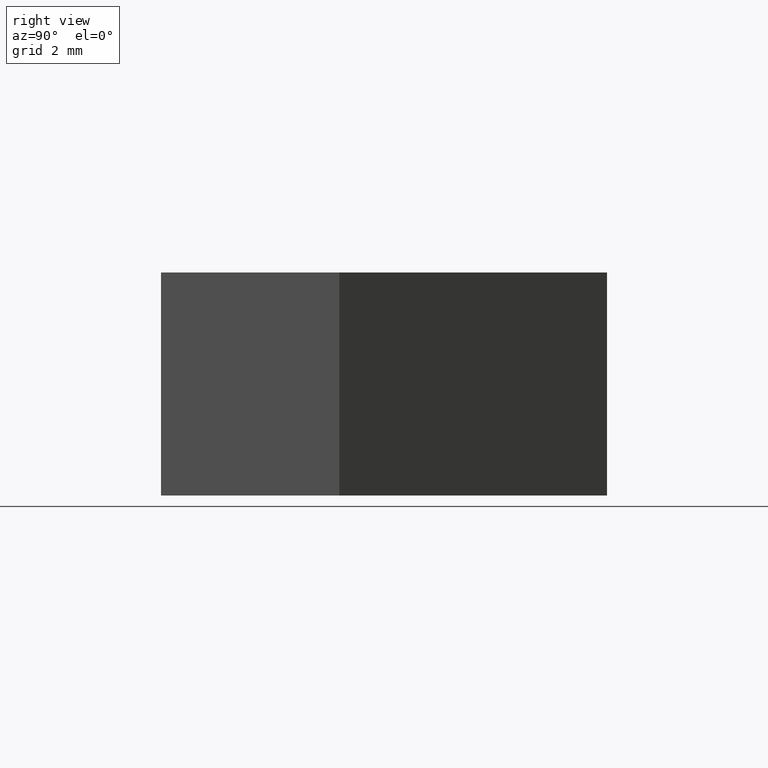
[diagram: clean part render]
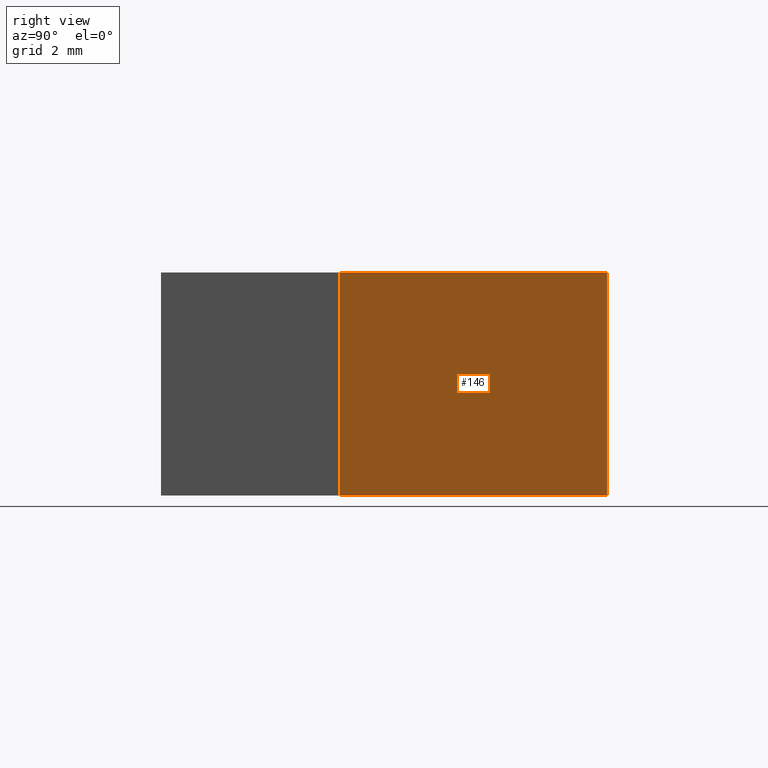
[diagram: same view with one face highlighted and labeled with its STEP entity id]
A machine part, right view. The second image highlights one B-rep face of the part: STEP entity #146.
In plain terms, the highlighted planar face has unit normal (0.9231, 0.3846, 0).
Its self-contained STEP definition (entity closure, byte-faithful):
#20=FACE_OUTER_BOUND('',#28,.T.);
#28=EDGE_LOOP('',(#116,#117,#118,#119));
#37=LINE('',#230,#55);
#44=LINE('',#244,#62);
#45=LINE('',#247,#63);
#46=LINE('',#248,#64);
#55=VECTOR('',#190,10.);
#62=VECTOR('',#203,10.);
#63=VECTOR('',#206,10.);
#64=VECTOR('',#207,10.);
#69=VERTEX_POINT('',#220);
#73=VERTEX_POINT('',#228);
#77=VERTEX_POINT('',#242);
#78=VERTEX_POINT('',#246);
#85=EDGE_CURVE('',#69,#73,#37,.T.);
#92=EDGE_CURVE('',#77,#73,#44,.T.);
#93=EDGE_CURVE('',#77,#78,#45,.T.);
#94=EDGE_CURVE('',#78,#69,#46,.T.);
#116=ORIENTED_EDGE('',*,*,#93,.T.);
#117=ORIENTED_EDGE('',*,*,#94,.T.);
#118=ORIENTED_EDGE('',*,*,#85,.T.);
#119=ORIENTED_EDGE('',*,*,#92,.F.);
#138=PLANE('',#177);
#146=ADVANCED_FACE('',(#20),#138,.T.);
#177=AXIS2_PLACEMENT_3D('',#245,#204,#205);
#190=DIRECTION('',(-0.384615384615385,0.923076923076923,0.));
#203=DIRECTION('',(0.,0.,-1.));
#204=DIRECTION('center_axis',(0.923076923076923,0.384615384615385,0.));
#205=DIRECTION('ref_axis',(0.,0.,-1.));
#206=DIRECTION('',(0.384615384615385,-0.923076923076923,0.));
#207=DIRECTION('',(0.,0.,-1.));
#220=CARTESIAN_POINT('',(6.,-1.,-2.5));
#228=CARTESIAN_POINT('',(3.5,5.,-2.5));
#230=CARTESIAN_POINT('',(3.5,5.,-2.5));
#242=CARTESIAN_POINT('',(3.5,5.,2.5));
#244=CARTESIAN_POINT('',(3.5,5.,0.));
#245=CARTESIAN_POINT('Origin',(3.5,5.,0.));
#246=CARTESIAN_POINT('',(6.,-1.,2.5));
#247=CARTESIAN_POINT('',(3.5,5.,2.5));
#248=CARTESIAN_POINT('',(6.,-1.,0.));